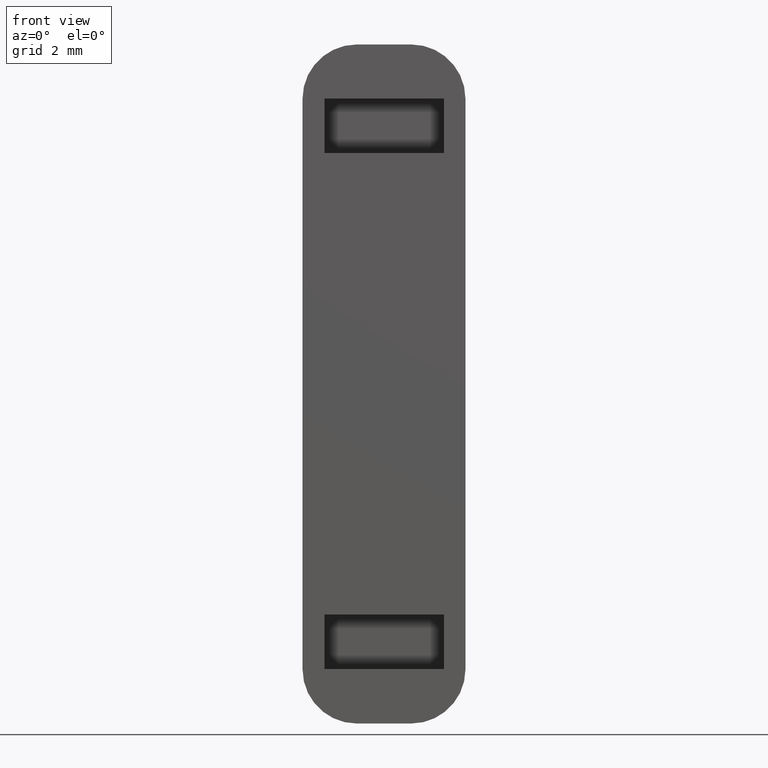
[diagram: clean part render]
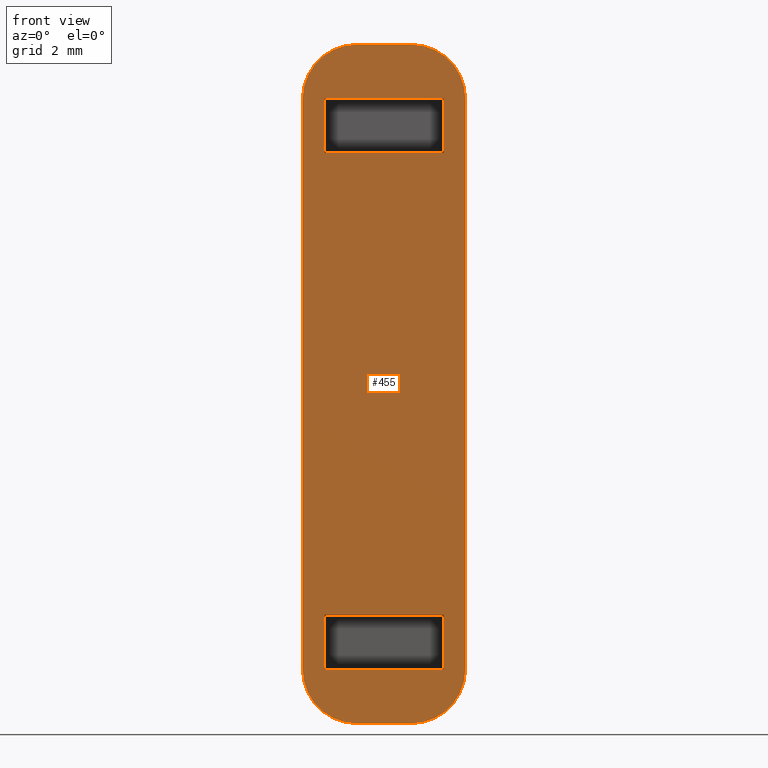
[diagram: same view with one face highlighted and labeled with its STEP entity id]
A machine part, front view. The second image highlights one B-rep face of the part: STEP entity #455.
In plain terms, the highlighted planar face has unit normal (0, -1, 0).
Its self-contained STEP definition (entity closure, byte-faithful):
#27=FACE_BOUND('',#90,.T.);
#28=FACE_BOUND('',#91,.T.);
#33=CIRCLE('',#511,2.);
#34=CIRCLE('',#512,2.);
#35=CIRCLE('',#513,2.);
#36=CIRCLE('',#514,2.);
#61=FACE_OUTER_BOUND('',#89,.T.);
#89=EDGE_LOOP('',(#351,#352,#353,#354,#355,#356,#357,#358));
#90=EDGE_LOOP('',(#359,#360,#361,#362));
#91=EDGE_LOOP('',(#363,#364,#365,#366));
#109=LINE('',#692,#153);
#112=LINE('',#699,#156);
#117=LINE('',#708,#161);
#122=LINE('',#718,#166);
#124=LINE('',#722,#168);
#127=LINE('',#728,#171);
#128=LINE('',#730,#172);
#129=LINE('',#732,#173);
#131=LINE('',#738,#175);
#135=LINE('',#751,#179);
#139=LINE('',#765,#183);
#140=LINE('',#770,#184);
#153=VECTOR('',#548,10.);
#156=VECTOR('',#553,10.);
#161=VECTOR('',#560,10.);
#166=VECTOR('',#569,10.);
#168=VECTOR('',#573,10.);
#171=VECTOR('',#578,10.);
#172=VECTOR('',#581,10.);
#173=VECTOR('',#584,10.);
#175=VECTOR('',#590,10.);
#179=VECTOR('',#600,10.);
#183=VECTOR('',#612,10.);
#184=VECTOR('',#617,10.);
#197=VERTEX_POINT('',#689);
#198=VERTEX_POINT('',#691);
#199=VERTEX_POINT('',#695);
#201=VERTEX_POINT('',#698);
#204=VERTEX_POINT('',#706);
#207=VERTEX_POINT('',#716);
#208=VERTEX_POINT('',#720);
#210=VERTEX_POINT('',#726);
#211=VERTEX_POINT('',#736);
#212=VERTEX_POINT('',#737);
#217=VERTEX_POINT('',#749);
#218=VERTEX_POINT('',#750);
#223=VERTEX_POINT('',#762);
#224=VERTEX_POINT('',#764);
#225=VERTEX_POINT('',#767);
#226=VERTEX_POINT('',#769);
#237=EDGE_CURVE('',#198,#197,#109,.T.);
#240=EDGE_CURVE('',#201,#199,#112,.T.);
#245=EDGE_CURVE('',#197,#204,#117,.T.);
#250=EDGE_CURVE('',#199,#207,#122,.T.);
#252=EDGE_CURVE('',#208,#204,#124,.T.);
#255=EDGE_CURVE('',#210,#207,#127,.T.);
#256=EDGE_CURVE('',#208,#198,#128,.T.);
#257=EDGE_CURVE('',#210,#201,#129,.T.);
#259=EDGE_CURVE('',#211,#212,#131,.T.);
#265=EDGE_CURVE('',#217,#218,#135,.T.);
#271=EDGE_CURVE('',#223,#218,#33,.T.);
#272=EDGE_CURVE('',#224,#223,#139,.T.);
#273=EDGE_CURVE('',#212,#224,#34,.T.);
#274=EDGE_CURVE('',#225,#211,#35,.T.);
#275=EDGE_CURVE('',#226,#225,#140,.T.);
#276=EDGE_CURVE('',#217,#226,#36,.T.);
#351=ORIENTED_EDGE('',*,*,#265,.T.);
#352=ORIENTED_EDGE('',*,*,#271,.F.);
#353=ORIENTED_EDGE('',*,*,#272,.F.);
#354=ORIENTED_EDGE('',*,*,#273,.F.);
#355=ORIENTED_EDGE('',*,*,#259,.F.);
#356=ORIENTED_EDGE('',*,*,#274,.F.);
#357=ORIENTED_EDGE('',*,*,#275,.F.);
#358=ORIENTED_EDGE('',*,*,#276,.F.);
#359=ORIENTED_EDGE('',*,*,#245,.T.);
#360=ORIENTED_EDGE('',*,*,#252,.F.);
#361=ORIENTED_EDGE('',*,*,#256,.T.);
#362=ORIENTED_EDGE('',*,*,#237,.T.);
#363=ORIENTED_EDGE('',*,*,#240,.T.);
#364=ORIENTED_EDGE('',*,*,#250,.T.);
#365=ORIENTED_EDGE('',*,*,#255,.F.);
#366=ORIENTED_EDGE('',*,*,#257,.T.);
#439=PLANE('',#510);
#455=ADVANCED_FACE('',(#61,#27,#28),#439,.T.);
#510=AXIS2_PLACEMENT_3D('',#761,#608,#609);
#511=AXIS2_PLACEMENT_3D('',#763,#610,#611);
#512=AXIS2_PLACEMENT_3D('',#766,#613,#614);
#513=AXIS2_PLACEMENT_3D('',#768,#615,#616);
#514=AXIS2_PLACEMENT_3D('',#771,#618,#619);
#548=DIRECTION('',(4.31408307542741E-32,-7.40148683083438E-17,1.));
#553=DIRECTION('',(4.31408307542741E-32,-7.40148683083438E-17,1.));
#560=DIRECTION('',(1.,1.85037170770859E-16,1.23259516440783E-30));
#569=DIRECTION('',(1.,1.85037170770859E-16,-1.79753461476142E-31));
#573=DIRECTION('',(-4.31408307542741E-32,-7.40148683083438E-17,1.));
#578=DIRECTION('',(-4.31408307542741E-32,-7.40148683083438E-17,1.));
#581=DIRECTION('',(-1.,-1.85037170770859E-16,8.21730109605219E-31));
#584=DIRECTION('',(-1.,-1.85037170770859E-16,1.1812370325575E-30));
#590=DIRECTION('',(4.31408307542741E-32,7.40148683083438E-17,-1.));
#600=DIRECTION('',(-4.31408307542741E-32,7.40148683083438E-17,-1.));
#608=DIRECTION('center_axis',(1.85037170770859E-16,-1.,0.));
#609=DIRECTION('ref_axis',(-1.,-1.85037170770859E-16,0.));
#610=DIRECTION('center_axis',(-1.85037170770859E-16,1.,0.));
#611=DIRECTION('ref_axis',(-0.707106781186547,-1.96261557335472E-16,-0.707106781186548));
#612=DIRECTION('',(-1.,-1.85037170770859E-16,0.));
#613=DIRECTION('center_axis',(-1.85037170770859E-16,1.,0.));
#614=DIRECTION('ref_axis',(0.707106781186547,-7.85046229341887E-16,-0.707106781186548));
#615=DIRECTION('center_axis',(-1.85037170770859E-16,1.,0.));
#616=DIRECTION('ref_axis',(0.707106781186548,-7.85046229341888E-16,0.707106781186548));
#617=DIRECTION('',(1.,1.85037170770859E-16,0.));
#618=DIRECTION('center_axis',(-1.85037170770859E-16,1.,0.));
#619=DIRECTION('ref_axis',(-0.707106781186548,-1.96261557335472E-16,0.707106781186547));
#689=CARTESIAN_POINT('',(-2.2,5.55111512312578E-16,-21.));
#691=CARTESIAN_POINT('',(-2.2,5.55111512312578E-16,-23.));
#692=CARTESIAN_POINT('',(-2.2,2.77555756156289E-16,-21.));
#695=CARTESIAN_POINT('',(-2.2,5.55111512312578E-16,-2.));
#698=CARTESIAN_POINT('',(-2.2,5.55111512312578E-16,-4.));
#699=CARTESIAN_POINT('',(-2.2,2.77555756156289E-16,-2.));
#706=CARTESIAN_POINT('',(2.2,5.55111512312578E-16,-21.));
#708=CARTESIAN_POINT('',(1.5,-2.77555756156281E-16,-21.));
#716=CARTESIAN_POINT('',(2.2,5.55111512312578E-16,-2.));
#718=CARTESIAN_POINT('',(1.5,-2.77555756156289E-16,-2.));
#720=CARTESIAN_POINT('',(2.2,5.55111512312578E-16,-23.));
#722=CARTESIAN_POINT('',(2.2,2.77555756156289E-16,-21.));
#726=CARTESIAN_POINT('',(2.2,5.55111512312578E-16,-4.));
#728=CARTESIAN_POINT('',(2.2,2.77555756156289E-16,-2.));
#730=CARTESIAN_POINT('',(1.5,-2.77555756156289E-16,-23.));
#732=CARTESIAN_POINT('',(1.5,-2.77555756156289E-16,-4.));
#736=CARTESIAN_POINT('',(3.,0.,-2.));
#737=CARTESIAN_POINT('',(3.,0.,-23.));
#738=CARTESIAN_POINT('',(3.,0.,-21.));
#749=CARTESIAN_POINT('',(-3.,-1.11022302462516E-15,-2.));
#750=CARTESIAN_POINT('',(-3.,-1.11022302462516E-15,-23.));
#751=CARTESIAN_POINT('',(-3.,0.,-21.));
#761=CARTESIAN_POINT('Origin',(3.,0.,0.));
#762=CARTESIAN_POINT('',(-1.,-7.40148683083438E-16,-25.));
#763=CARTESIAN_POINT('Origin',(-1.,-8.32667268468867E-16,-23.));
#764=CARTESIAN_POINT('',(1.,-3.70074341541719E-16,-25.));
#765=CARTESIAN_POINT('',(-3.,-1.11022302462516E-15,-25.));
#766=CARTESIAN_POINT('Origin',(1.,1.11022302462516E-15,-23.));
#767=CARTESIAN_POINT('',(1.,-3.70074341541719E-16,0.));
#768=CARTESIAN_POINT('Origin',(1.,1.11022302462516E-15,-2.));
#769=CARTESIAN_POINT('',(-1.,-7.40148683083438E-16,0.));
#770=CARTESIAN_POINT('',(-3.,-1.11022302462516E-15,0.));
#771=CARTESIAN_POINT('Origin',(-1.,-8.32667268468867E-16,-2.));